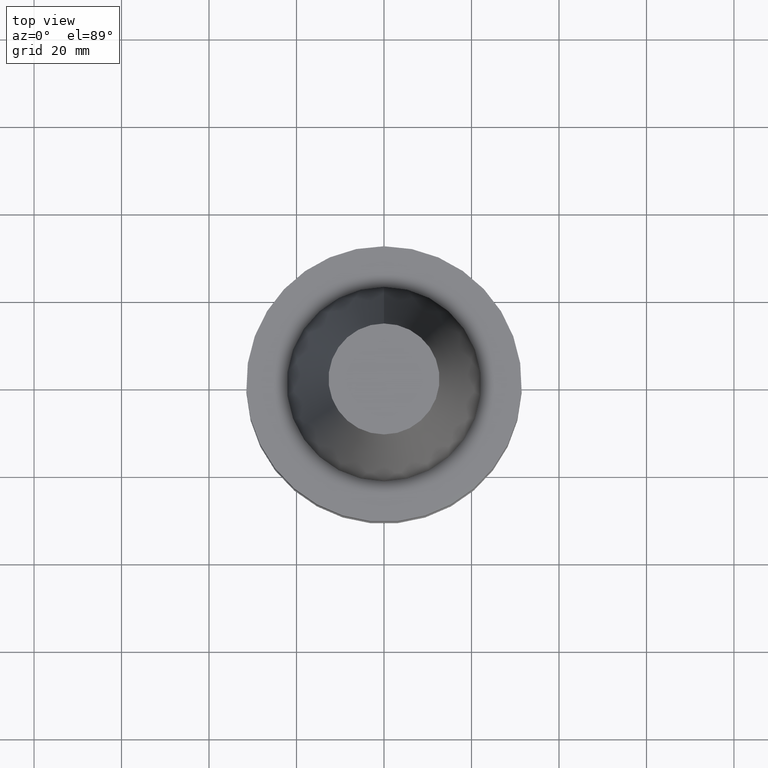
[diagram: clean part render]
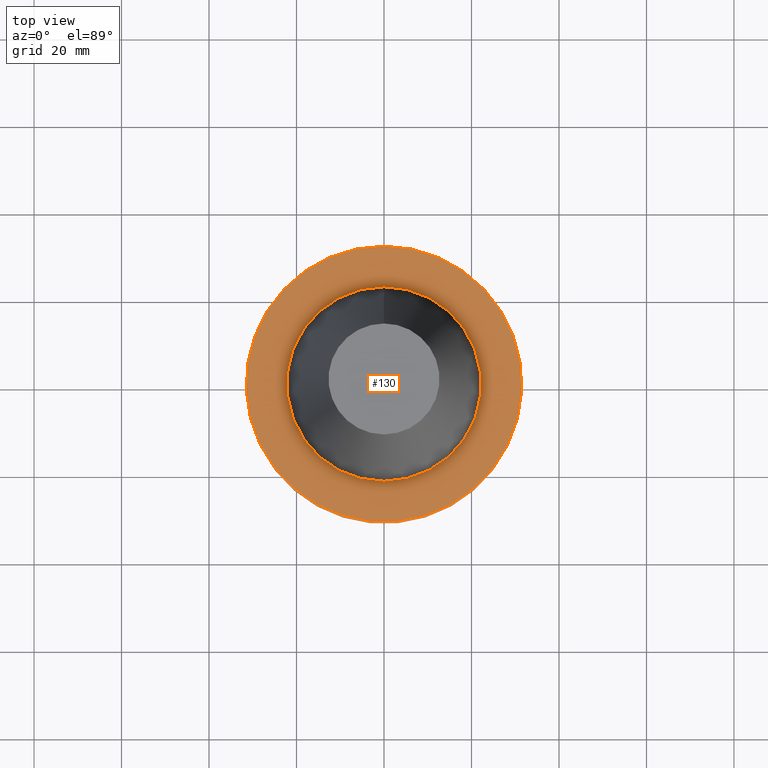
[diagram: same view with one face highlighted and labeled with its STEP entity id]
A machine part, top view. The second image highlights one B-rep face of the part: STEP entity #130.
In plain terms, the highlighted planar face has unit normal (-0, -0, 1).
Its self-contained STEP definition (entity closure, byte-faithful):
#73=EDGE_CURVE('Unnamed[1]',#185,#185,#186,.T.);
#75=EDGE_CURVE('Unnamed[1]',#188,#188,#189,.T.);
#130=ADVANCED_FACE('Unnamed[1]',(#273,#274),#275,.T.);
#185=VERTEX_POINT('',#331);
#186=CIRCLE('',#332,22.225);
#188=VERTEX_POINT('',#335);
#189=CIRCLE('',#336,31.4999999999997);
#273=FACE_OUTER_BOUND('',#442,.T.);
#274=FACE_BOUND('',#443,.T.);
#275=PLANE('',#444);
#331=CARTESIAN_POINT('',(6.12323399573622E-017,22.2250000000001,-0.999999999999912));
#332=AXIS2_PLACEMENT_3D('',#497,#498,#499);
#335=CARTESIAN_POINT('',(6.12323399573568E-017,31.4999999999997,-0.999999999999825));
#336=AXIS2_PLACEMENT_3D('',#500,#501,#502);
#442=EDGE_LOOP('',(#595));
#443=EDGE_LOOP('',(#596));
#444=AXIS2_PLACEMENT_3D('',#597,#598,#599);
#497=CARTESIAN_POINT('',(6.12323399573616E-017,3.19818789058561E-014,-0.999999999999901));
#498=DIRECTION('',(6.12323399573676E-017,-6.70422349373967E-016,-1.0));
#499=DIRECTION('',(3.62243764811148E-032,1.0,-6.70422349373967E-016));
#500=CARTESIAN_POINT('',(6.12323399573555E-017,3.19818789058562E-014,-0.999999999999801));
#501=DIRECTION('',(6.12323399573677E-017,-6.70422349373967E-016,-1.0));
#502=DIRECTION('',(3.62243764811148E-032,1.0,-6.70422349373967E-016));
#595=ORIENTED_EDGE('',*,*,#75,.F.);
#596=ORIENTED_EDGE('',*,*,#73,.T.);
#597=CARTESIAN_POINT('',(6.12323399573595E-017,26.8624999999999,-0.999999999999869));
#598=DIRECTION('',(-6.12323399573677E-017,-9.35138060429241E-015,1.0));
#599=DIRECTION('',(5.77434068963536E-031,-1.0,-9.35138060429241E-015));